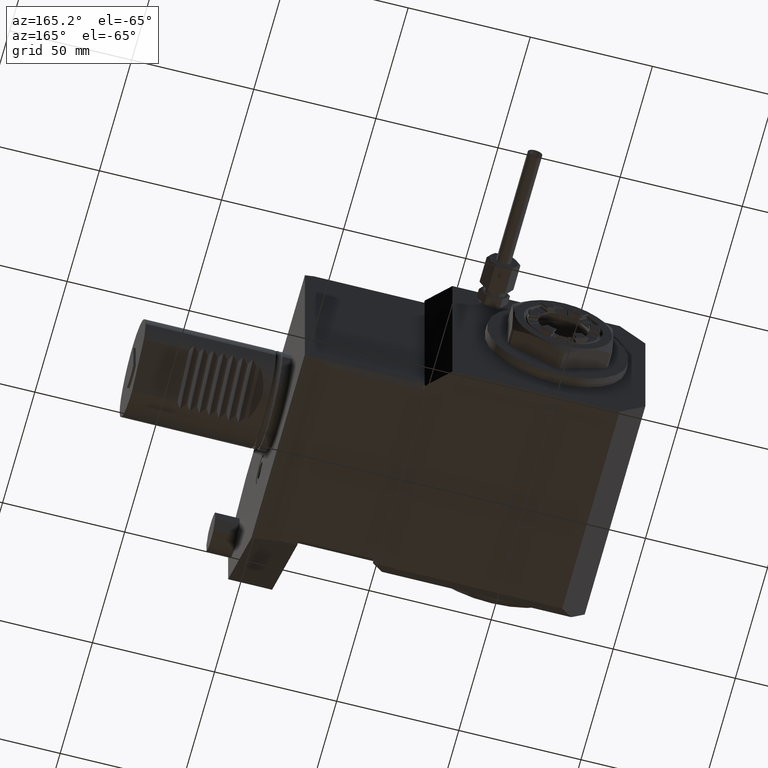
[diagram: clean part render]
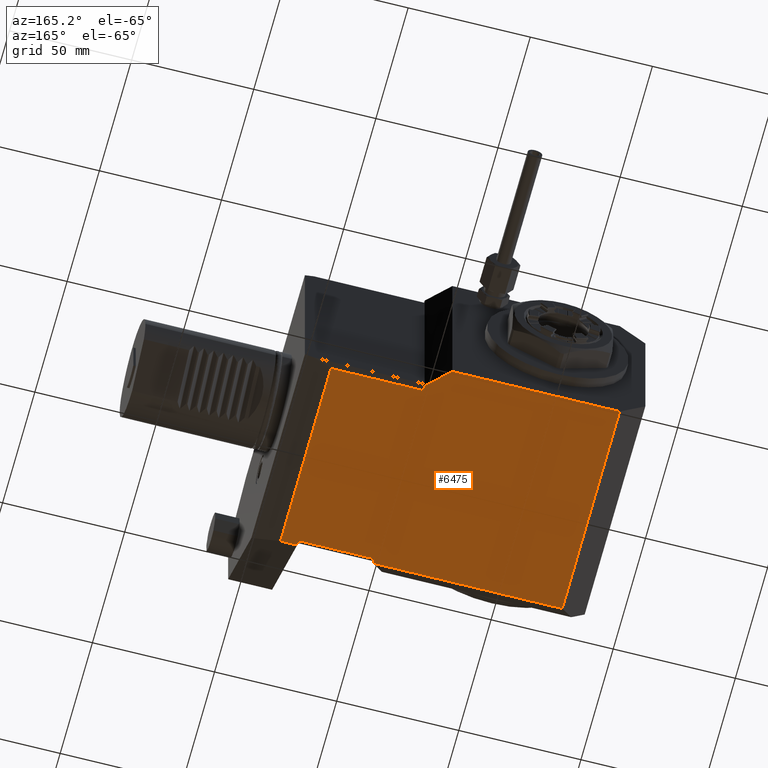
[diagram: same view with one face highlighted and labeled with its STEP entity id]
A machine part, auxiliary view. The second image highlights one B-rep face of the part: STEP entity #6475.
In plain terms, the highlighted planar face has unit normal (0, 0, 1).
Its self-contained STEP definition (entity closure, byte-faithful):
#310=LINE('',#9687,#866);
#328=LINE('',#9733,#884);
#331=LINE('',#9738,#887);
#337=LINE('',#9750,#893);
#339=LINE('',#9755,#895);
#341=LINE('',#9758,#897);
#342=LINE('',#9760,#898);
#343=LINE('',#9762,#899);
#344=LINE('',#9764,#900);
#345=LINE('',#9766,#901);
#346=LINE('',#9768,#902);
#866=VECTOR('',#7674,1000.);
#884=VECTOR('',#7712,1000.);
#887=VECTOR('',#7717,1000.);
#893=VECTOR('',#7727,1000.);
#895=VECTOR('',#7731,1000.);
#897=VECTOR('',#7735,1000.);
#898=VECTOR('',#7736,1000.);
#899=VECTOR('',#7737,1000.);
#900=VECTOR('',#7738,1000.);
#901=VECTOR('',#7739,1000.);
#902=VECTOR('',#7740,1000.);
#1402=PLANE('',#6919);
#1865=ORIENTED_EDGE('',*,*,#3667,.F.);
#1866=ORIENTED_EDGE('',*,*,#3643,.T.);
#1867=ORIENTED_EDGE('',*,*,#3675,.T.);
#1868=ORIENTED_EDGE('',*,*,#3677,.T.);
#1869=ORIENTED_EDGE('',*,*,#3678,.T.);
#1870=ORIENTED_EDGE('',*,*,#3679,.T.);
#1871=ORIENTED_EDGE('',*,*,#3680,.F.);
#1872=ORIENTED_EDGE('',*,*,#3681,.F.);
#1873=ORIENTED_EDGE('',*,*,#3682,.T.);
#1874=ORIENTED_EDGE('',*,*,#3673,.T.);
#1875=ORIENTED_EDGE('',*,*,#3664,.T.);
#3643=EDGE_CURVE('',#4575,#4574,#310,.T.);
#3664=EDGE_CURVE('',#4593,#4592,#328,.T.);
#3667=EDGE_CURVE('',#4575,#4592,#331,.T.);
#3673=EDGE_CURVE('',#4597,#4593,#337,.T.);
#3675=EDGE_CURVE('',#4574,#4598,#339,.T.);
#3677=EDGE_CURVE('',#4598,#4600,#341,.T.);
#3678=EDGE_CURVE('',#4600,#4601,#342,.T.);
#3679=EDGE_CURVE('',#4601,#4602,#343,.T.);
#3680=EDGE_CURVE('',#4603,#4602,#344,.T.);
#3681=EDGE_CURVE('',#4604,#4603,#345,.T.);
#3682=EDGE_CURVE('',#4604,#4597,#346,.T.);
#4574=VERTEX_POINT('',#9686);
#4575=VERTEX_POINT('',#9688);
#4592=VERTEX_POINT('',#9732);
#4593=VERTEX_POINT('',#9734);
#4597=VERTEX_POINT('',#9748);
#4598=VERTEX_POINT('',#9753);
#4600=VERTEX_POINT('',#9759);
#4601=VERTEX_POINT('',#9761);
#4602=VERTEX_POINT('',#9763);
#4603=VERTEX_POINT('',#9765);
#4604=VERTEX_POINT('',#9767);
#5428=EDGE_LOOP('',(#1865,#1866,#1867,#1868,#1869,#1870,#1871,#1872,#1873,
#1874,#1875));
#5894=FACE_BOUND('',#5428,.T.);
#6475=ADVANCED_FACE('',(#5894),#1402,.F.);
#6919=AXIS2_PLACEMENT_3D('',#9757,#7733,#7734);
#7674=DIRECTION('',(6.12303176911189E-17,1.,0.));
#7712=DIRECTION('',(0.,-1.,0.));
#7717=DIRECTION('',(1.,0.,0.));
#7727=DIRECTION('',(1.,0.,0.));
#7731=DIRECTION('',(-1.,6.12303176911189E-17,0.));
#7733=DIRECTION('',(0.,0.,1.));
#7734=DIRECTION('',(1.,0.,0.));
#7735=DIRECTION('',(-4.10996198933251E-18,-1.,2.05731406761622E-16));
#7736=DIRECTION('',(-1.,-2.49262030336057E-16,-5.06539254985228E-16));
#7737=DIRECTION('',(-2.49262030336056E-16,1.,-2.05731406761622E-16));
#7738=DIRECTION('',(-1.,-2.49262030336057E-16,-5.06539254985228E-16));
#7739=DIRECTION('',(-0.707106781186547,0.707106781186548,-5.03651414961427E-16));
#7740=DIRECTION('',(-4.10996198933251E-18,-1.,2.05731406761622E-16));
#9686=CARTESIAN_POINT('',(-18.,-38.,-40.));
#9687=CARTESIAN_POINT('',(-18.,-40.,-40.));
#9688=CARTESIAN_POINT('',(-18.,-40.,-40.));
#9732=CARTESIAN_POINT('',(-11.1961524227066,-40.,-40.));
#9733=CARTESIAN_POINT('',(-11.1961524227066,40.,-40.));
#9734=CARTESIAN_POINT('',(-11.1961524227066,38.,-40.));
#9738=CARTESIAN_POINT('',(-49.,-40.,-40.));
#9748=CARTESIAN_POINT('',(-49.,38.,-40.));
#9750=CARTESIAN_POINT('',(-49.,38.,-40.));
#9753=CARTESIAN_POINT('',(-49.,-38.,-40.));
#9755=CARTESIAN_POINT('',(-49.,-38.,-40.));
#9757=CARTESIAN_POINT('',(-49.,40.,-40.));
#9758=CARTESIAN_POINT('',(-49.,49.,-40.));
#9759=CARTESIAN_POINT('',(-49.,-40.,-40.));
#9760=CARTESIAN_POINT('',(-137.,-40.,-40.));
#9761=CARTESIAN_POINT('',(-126.5,-40.,-40.));
#9762=CARTESIAN_POINT('',(-126.5,49.,-40.0000000000001));
#9763=CARTESIAN_POINT('',(-126.5,49.,-40.0000000000001));
#9764=CARTESIAN_POINT('',(-137.,49.,-40.0000000000001));
#9765=CARTESIAN_POINT('',(-58.,49.,-40.));
#9766=CARTESIAN_POINT('',(-49.,40.,-40.));
#9767=CARTESIAN_POINT('',(-49.,40.,-40.));
#9768=CARTESIAN_POINT('',(-49.,49.,-40.));